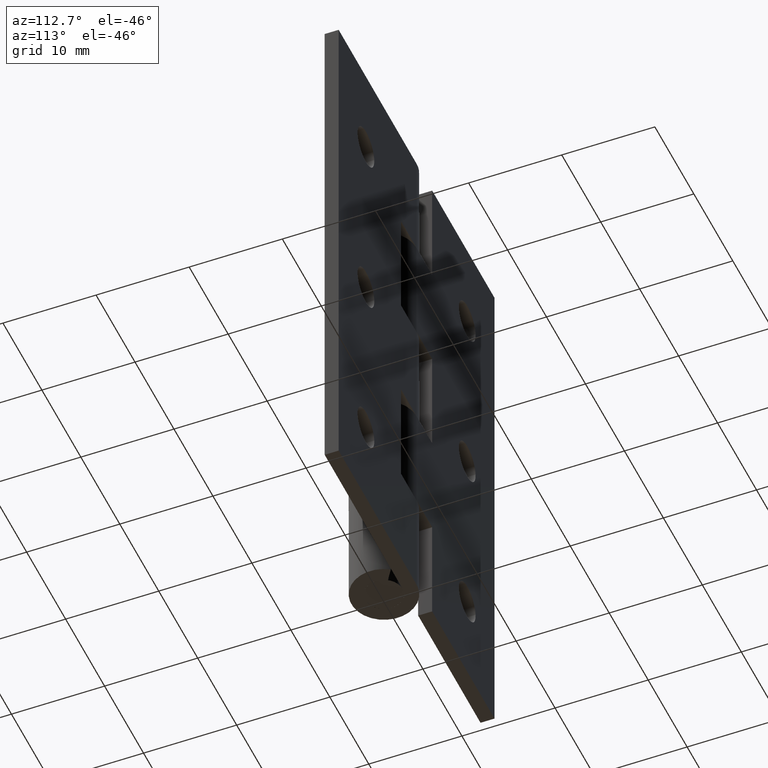
[diagram: clean part render]
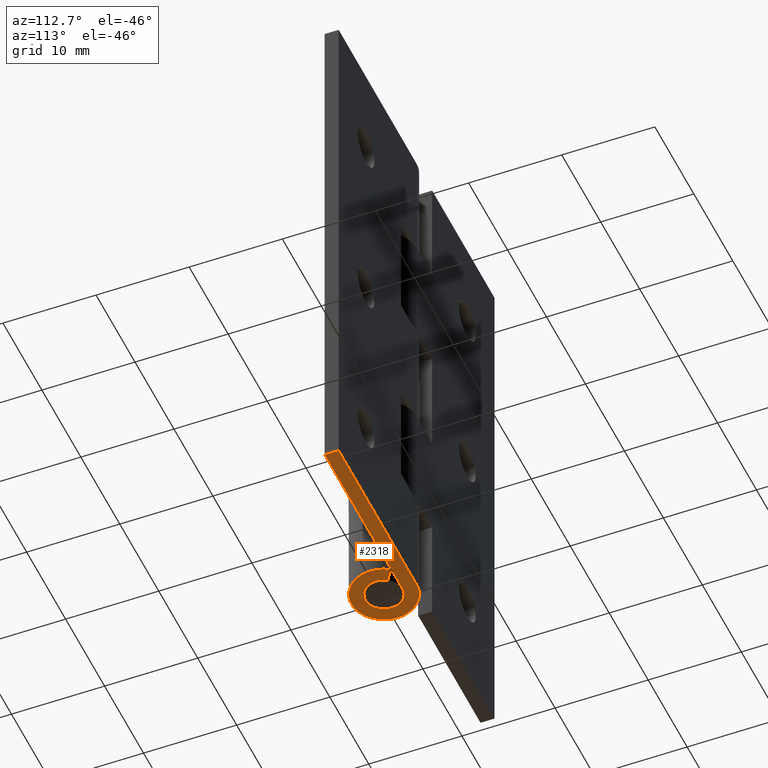
[diagram: same view with one face highlighted and labeled with its STEP entity id]
A machine part, auxiliary view. The second image highlights one B-rep face of the part: STEP entity #2318.
In plain terms, the highlighted face is a freeform B-spline surface patch.
Its self-contained STEP definition (entity closure, byte-faithful):
#2241=CARTESIAN_POINT('',(-4.673075867083732,-3.846650850724252,0.0));
#2242=CARTESIAN_POINT('',(21.173789947900492,-3.846650850724252,0.0));
#2243=CARTESIAN_POINT('',(-4.673075867083732,3.849507494151526,0.0));
#2244=CARTESIAN_POINT('',(21.173789947900492,3.849507494151526,0.0));
#2245=B_SPLINE_SURFACE_WITH_KNOTS('',1,1,((#2241,#2243),(#2242,#2244)),.UNSPECIFIED.,.F.,.F.,.U.,(2,2),(2,2),(0.0,25.846865814984220),(0.0,7.696158344875778),.UNSPECIFIED.);
#2246=CARTESIAN_POINT('',(-6.429183E-016,3.500000000000000,0.0));
#2247=VERTEX_POINT('',#2246);
#2248=CARTESIAN_POINT('',(20.0,3.500000000000000,0.0));
#2249=VERTEX_POINT('',#2248);
#2250=CARTESIAN_POINT('',(-6.429183E-016,3.500000000000000,0.0));
#2251=CARTESIAN_POINT('',(20.0,3.500000000000000,0.0));
#2252=QUASI_UNIFORM_CURVE('',1,(#2250,#2251),.UNSPECIFIED.,.F.,.U.);
#2253=EDGE_CURVE('',#2247,#2249,#2252,.T.);
#2254=ORIENTED_EDGE('',*,*,#2253,.T.);
#2255=CARTESIAN_POINT('',(20.0,2.0,0.0));
#2256=VERTEX_POINT('',#2255);
#2257=CARTESIAN_POINT('',(20.0,3.500000000000000,0.0));
#2258=CARTESIAN_POINT('',(20.0,2.0,0.0));
#2259=QUASI_UNIFORM_CURVE('',1,(#2257,#2258),.UNSPECIFIED.,.F.,.U.);
#2260=EDGE_CURVE('',#2249,#2256,#2259,.T.);
#2261=ORIENTED_EDGE('',*,*,#2260,.T.);
#2262=CARTESIAN_POINT('',(0.0,2.0,0.0));
#2263=VERTEX_POINT('',#2262);
#2264=CARTESIAN_POINT('',(20.0,2.0,0.0));
#2265=CARTESIAN_POINT('',(0.0,2.0,0.0));
#2266=QUASI_UNIFORM_CURVE('',1,(#2264,#2265),.UNSPECIFIED.,.F.,.U.);
#2267=EDGE_CURVE('',#2256,#2263,#2266,.T.);
#2268=ORIENTED_EDGE('',*,*,#2267,.T.);
#2269=CARTESIAN_POINT('',(1.660833329066700,1.114285714285716,0.0));
#2270=VERTEX_POINT('',#2269);
#2271=CARTESIAN_POINT('',(1.660833329066698,1.114285714285716,0.0));
#2272=CARTESIAN_POINT('',(2.530854670114226,-0.182473655134445,0.0));
#2273=CARTESIAN_POINT('',(1.483807222493547,-1.341013097056097,0.0));
#2274=CARTESIAN_POINT('',(0.436759774872868,-2.499552538977749,0.0));
#2275=CARTESIAN_POINT('',(-0.941123948114321,-1.764733893335115,0.0));
#2276=CARTESIAN_POINT('',(-2.319007671101507,-1.029915247692483,0.0));
#2277=CARTESIAN_POINT('',(-1.940292218542124,0.485042376153757,0.0));
#2278=CARTESIAN_POINT('',(-1.561576765982740,2.000000000000000,0.0));
#2279=CARTESIAN_POINT('',(0.0,2.0,0.0));
#2287=(BOUNDED_CURVE()B_SPLINE_CURVE(2,(#2271,#2272,#2273,#2274,#2275,#2276,#2277,#2278,#2279),.UNSPECIFIED.,.F.,.U.)B_SPLINE_CURVE_WITH_KNOTS((3,2,2,2,3),(0.0,0.250000000000000,0.500000000000000,0.750000000000000,1.0),.UNSPECIFIED.)CURVE()GEOMETRIC_REPRESENTATION_ITEM()RATIONAL_B_SPLINE_CURVE((1.0,0.788200858942972,1.0,0.788200858942972,1.0,0.788200858942972,1.0,0.788200858942972,1.0))REPRESENTATION_ITEM(''));
#2288=EDGE_CURVE('',#2270,#2263,#2287,.T.);
#2289=ORIENTED_EDGE('',*,*,#2288,.F.);
#2290=CARTESIAN_POINT('',(2.906458325866720,1.950000000000000,0.0));
#2291=VERTEX_POINT('',#2290);
#2292=CARTESIAN_POINT('',(1.660833329066700,1.114285714285716,0.0));
#2293=CARTESIAN_POINT('',(2.906458325866720,1.950000000000000,0.0));
#2294=QUASI_UNIFORM_CURVE('',1,(#2292,#2293),.UNSPECIFIED.,.F.,.U.);
#2295=EDGE_CURVE('',#2270,#2291,#2294,.T.);
#2296=ORIENTED_EDGE('',*,*,#2295,.T.);
#2297=CARTESIAN_POINT('',(2.906458325866722,1.950000000000003,0.0));
#2298=CARTESIAN_POINT('',(4.428995672699895,-0.319328896485279,0.0));
#2299=CARTESIAN_POINT('',(2.596662639363708,-2.346772919848170,0.0));
#2300=CARTESIAN_POINT('',(0.764329606027520,-4.374216943211063,0.0));
#2301=CARTESIAN_POINT('',(-1.646966909200061,-3.088284313336452,0.0));
#2302=CARTESIAN_POINT('',(-4.058263424427636,-1.802351683461844,0.0));
#2303=CARTESIAN_POINT('',(-3.395511382448717,0.848824158269075,0.0));
#2304=CARTESIAN_POINT('',(-2.732759340469794,3.500000000000000,0.0));
#2305=CARTESIAN_POINT('',(0.0,3.500000000000000,0.0));
#2313=(BOUNDED_CURVE()B_SPLINE_CURVE(2,(#2297,#2298,#2299,#2300,#2301,#2302,#2303,#2304,#2305),.UNSPECIFIED.,.F.,.U.)B_SPLINE_CURVE_WITH_KNOTS((3,2,2,2,3),(0.0,0.250000000000000,0.500000000000000,0.750000000000000,1.0),.UNSPECIFIED.)CURVE()GEOMETRIC_REPRESENTATION_ITEM()RATIONAL_B_SPLINE_CURVE((1.0,0.788200858942973,1.0,0.788200858942973,1.0,0.788200858942973,1.0,0.788200858942973,1.0))REPRESENTATION_ITEM(''));
#2314=EDGE_CURVE('',#2291,#2247,#2313,.T.);
#2315=ORIENTED_EDGE('',*,*,#2314,.T.);
#2316=EDGE_LOOP('',(#2254,#2261,#2268,#2289,#2296,#2315));
#2317=FACE_OUTER_BOUND('',#2316,.T.);
#2318=ADVANCED_FACE('',(#2317),#2245,.F.);